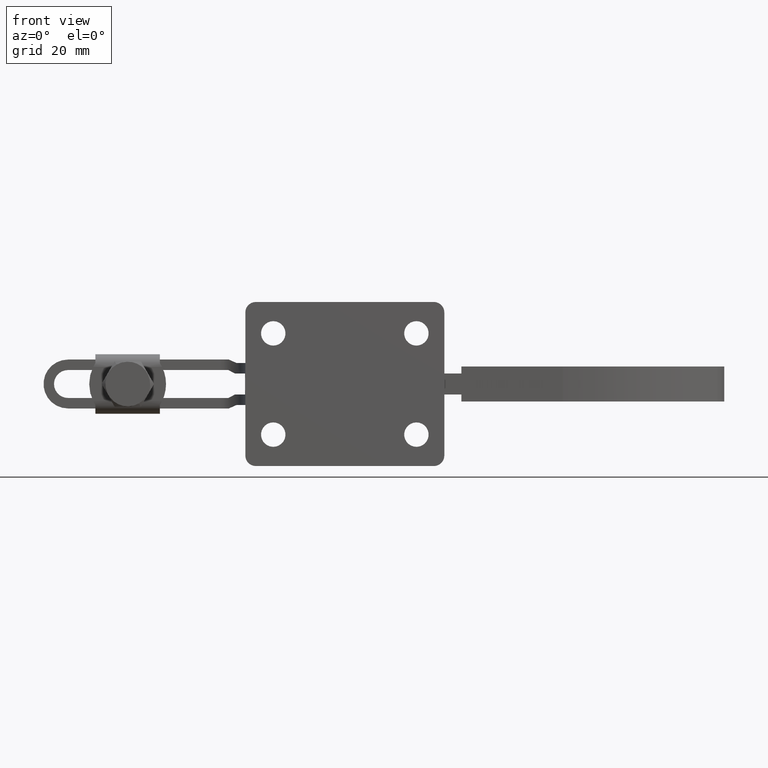
[diagram: clean part render]
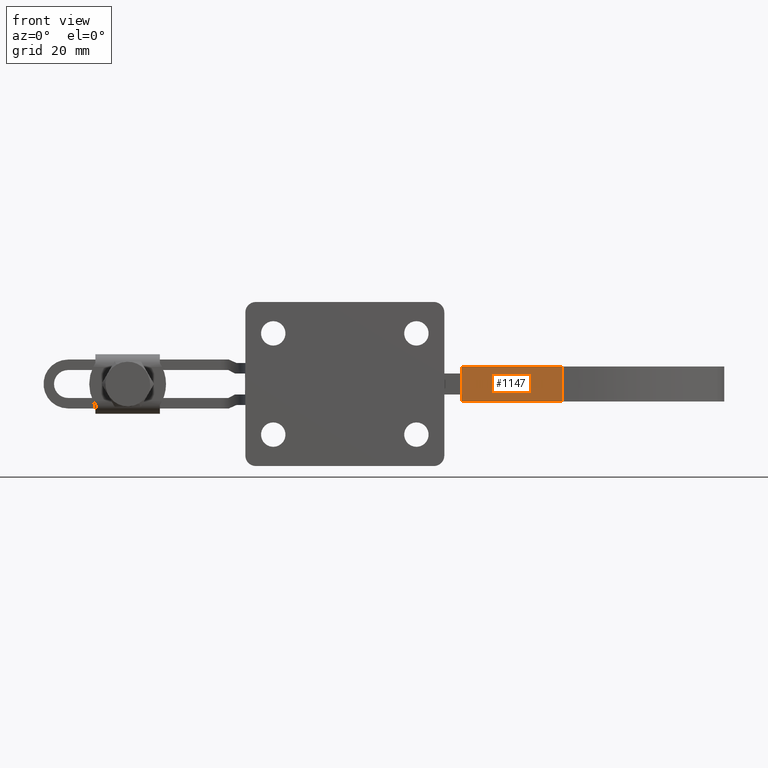
[diagram: same view with one face highlighted and labeled with its STEP entity id]
A machine part, front view. The second image highlights one B-rep face of the part: STEP entity #1147.
In plain terms, the highlighted planar face has unit normal (-0.049, -0.9988, 0).
Its self-contained STEP definition (entity closure, byte-faithful):
#104 = CARTESIAN_POINT ( 'NONE',  ( 33.90404303719848400, 26.15306339394216900, -5.000000000000003600 ) ) ;
#117 = EDGE_LOOP ( 'NONE', ( #2996, #7601, #7413, #2338 ) ) ;
#636 = VERTEX_POINT ( 'NONE', #1835 ) ;
#1147 = ADVANCED_FACE ( 'NONE', ( #2366 ), #7423, .T. ) ;
#1221 = DIRECTION ( 'NONE',  ( 0.9988003929835591600, -0.04896708053261664100, -2.266384458828925900E-036 ) ) ;
#1835 = CARTESIAN_POINT ( 'NONE',  ( 4.893949359471308800, 27.57530912327419500, -5.000000000000003600 ) ) ;
#1909 = CARTESIAN_POINT ( 'NONE',  ( 4.893949359471308800, 27.57530912327419500, -5.000000000000003600 ) ) ;
#2001 = DIRECTION ( 'NONE',  ( -0.04896708053261664100, -0.9988003929835591600, 1.083299517118831200E-051 ) ) ;
#2338 = ORIENTED_EDGE ( 'NONE', *, *, #3520, .T. ) ;
#2366 = FACE_OUTER_BOUND ( 'NONE', #117, .T. ) ;
#2707 = CARTESIAN_POINT ( 'NONE',  ( 4.893949359471308800, 27.57530912327419500, 4.999999999999996400 ) ) ;
#2805 = LINE ( 'NONE', #1909, #6695 ) ;
#2904 = EDGE_CURVE ( 'NONE', #4433, #3729, #4913, .T. ) ;
#2996 = ORIENTED_EDGE ( 'NONE', *, *, #7239, .T. ) ;
#3002 = DIRECTION ( 'NONE',  ( 1.169334560665335600E-051, -1.141928281899741800E-051, -1.000000000000000000 ) ) ;
#3105 = CARTESIAN_POINT ( 'NONE',  ( 33.90404303719848400, 26.15306339394216900, -5.000000000000003600 ) ) ;
#3458 = CARTESIAN_POINT ( 'NONE',  ( 4.893949359471308800, 27.57530912327419500, -5.000000000000003600 ) ) ;
#3520 = EDGE_CURVE ( 'NONE', #636, #7185, #2805, .T. ) ;
#3546 = VECTOR ( 'NONE', #4403, 1000.000000000000000 ) ;
#3729 = VERTEX_POINT ( 'NONE', #5182 ) ;
#4099 = CARTESIAN_POINT ( 'NONE',  ( 4.893949359471308800, 27.57530912327419500, -5.000000000000003600 ) ) ;
#4403 = DIRECTION ( 'NONE',  ( -1.169334560665335600E-051, 1.141928281899741800E-051, 1.000000000000000000 ) ) ;
#4433 = VERTEX_POINT ( 'NONE', #2707 ) ;
#4793 = CARTESIAN_POINT ( 'NONE',  ( 4.893949359471308800, 27.57530912327419500, 4.999999999999996400 ) ) ;
#4913 = LINE ( 'NONE', #4793, #6816 ) ;
#5095 = AXIS2_PLACEMENT_3D ( 'NONE', #3458, #2001, #3002 ) ;
#5182 = CARTESIAN_POINT ( 'NONE',  ( 33.90404303719848400, 26.15306339394216900, 4.999999999999996400 ) ) ;
#5450 = VECTOR ( 'NONE', #9230, 1000.000000000000000 ) ;
#6695 = VECTOR ( 'NONE', #1221, 1000.000000000000000 ) ;
#6816 = VECTOR ( 'NONE', #7655, 1000.000000000000000 ) ;
#7185 = VERTEX_POINT ( 'NONE', #3105 ) ;
#7239 = EDGE_CURVE ( 'NONE', #7185, #3729, #7616, .T. ) ;
#7381 = LINE ( 'NONE', #4099, #5450 ) ;
#7413 = ORIENTED_EDGE ( 'NONE', *, *, #7534, .F. ) ;
#7423 = PLANE ( 'NONE',  #5095 ) ;
#7534 = EDGE_CURVE ( 'NONE', #636, #4433, #7381, .T. ) ;
#7601 = ORIENTED_EDGE ( 'NONE', *, *, #2904, .F. ) ;
#7616 = LINE ( 'NONE', #104, #3546 ) ;
#7655 = DIRECTION ( 'NONE',  ( 0.9988003929835591600, -0.04896708053261664100, -2.266384458828925900E-036 ) ) ;
#9230 = DIRECTION ( 'NONE',  ( -1.169334560665335600E-051, 1.141928281899741800E-051, 1.000000000000000000 ) ) ;